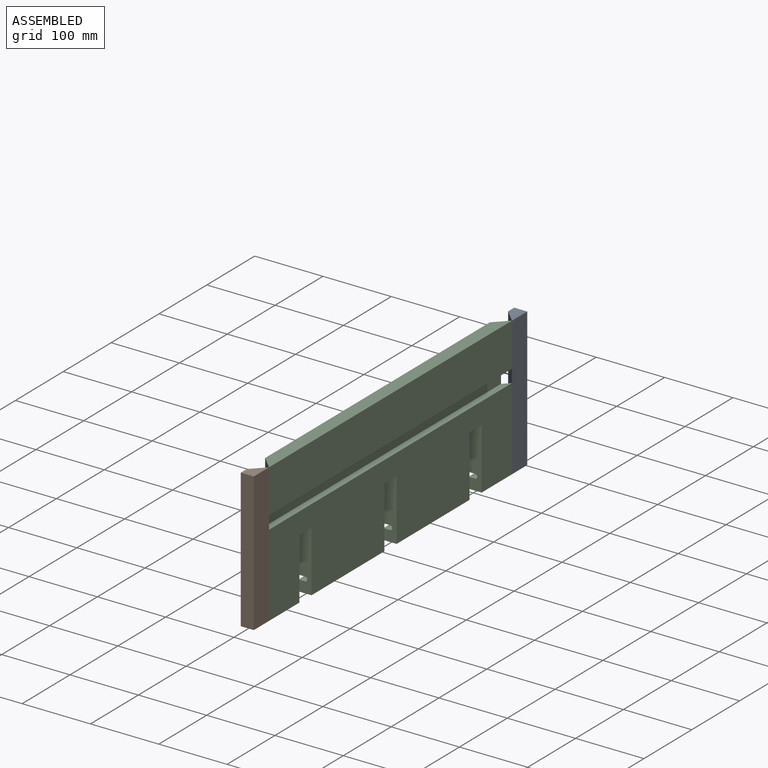
[diagram: assembled view]
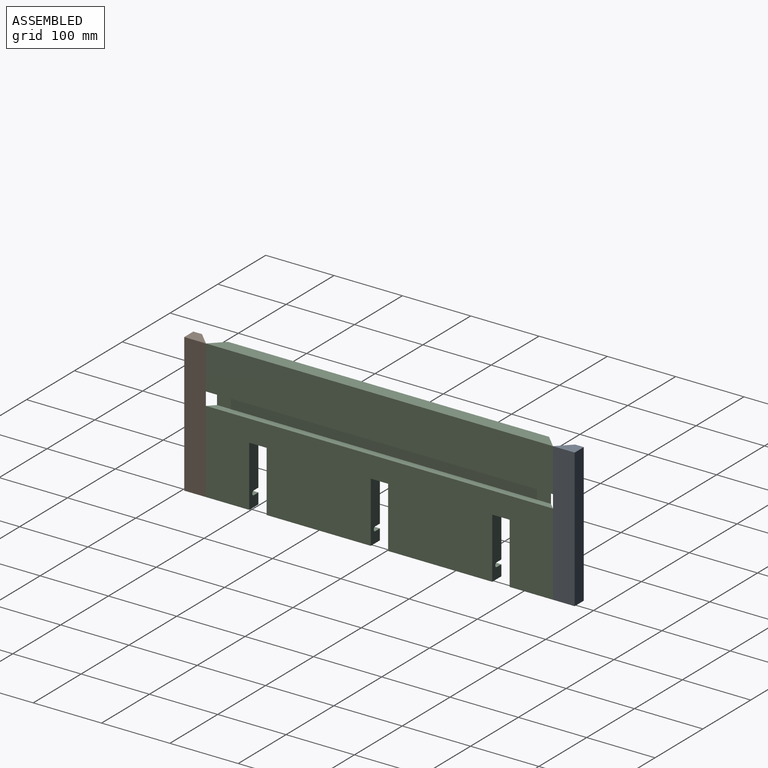
[diagram: assembled view, second angle]
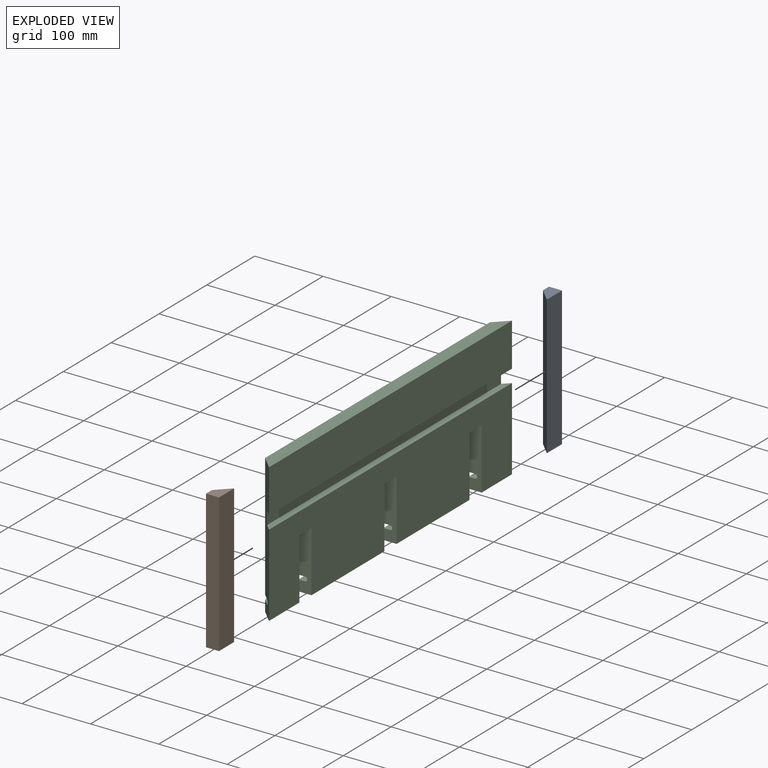
[diagram: exploded view]
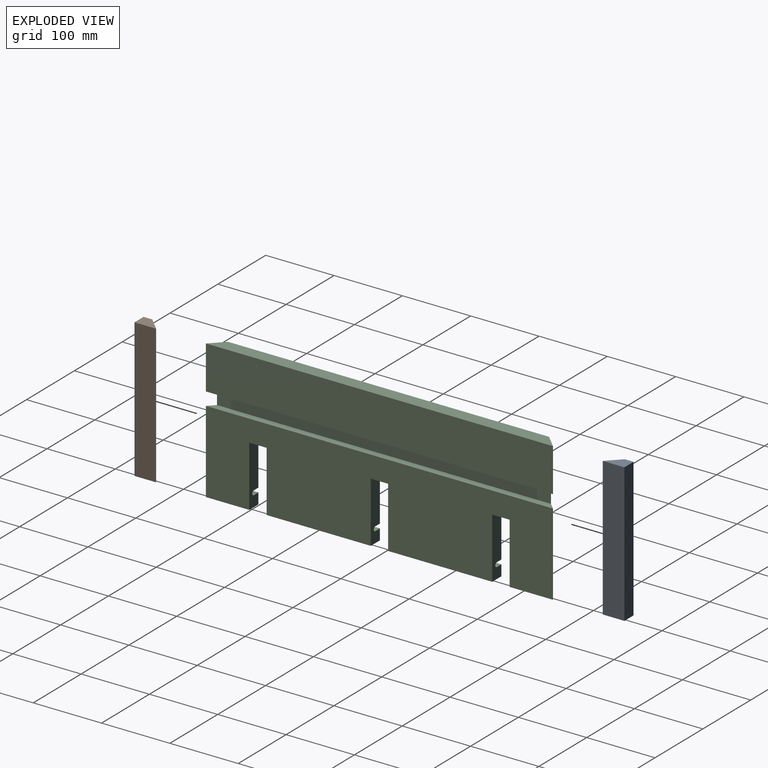
[diagram: exploded view, second angle]
ASSEMBLY  parts=3 mates=2
PART A: 6 faces, bbox 31.8x19.1x203.2 mm
  f0: plane 31.75x19.05mm, normal (0,0,-1), area 423.4mm2, adj f1,f3,f4,f5
  f1: plane 203.2x19.05mm, normal (0.71,-0.71,0), area 5474.4mm2, adj f0,f2,f3,f4
  f2: plane 31.75x19.05mm, normal (0,0,1), area 423.4mm2, adj f1,f3,f4,f5
  f3: plane 203.2x31.75mm, normal (0,1,0), area 6451.6mm2, adj f0,f1,f2,f5
  f4: plane 203.2x12.7mm, normal (0,-1,0), area 2580.6mm2, adj f0,f1,f2,f5
  f5: plane 203.2x19.05mm, normal (-1,0,0), area 3871mm2, adj f0,f2,f3,f4
PART B: 6 faces, bbox 31.8x19.1x203.2 mm
  f0: plane 31.75x19.05mm, normal (0,0,-1), area 423.4mm2, adj f1,f3,f4,f5
  f1: plane 203.2x19.05mm, normal (0.71,0.71,0), area 5474.4mm2, adj f0,f2,f3,f4
  f2: plane 31.75x19.05mm, normal (0,0,1), area 423.4mm2, adj f1,f3,f4,f5
  f3: plane 203.2x31.75mm, normal (0,-1,0), area 6451.6mm2, adj f0,f1,f2,f5
  f4: plane 203.2x12.7mm, normal (0,1,0), area 2580.6mm2, adj f0,f1,f2,f5
  f5: plane 203.2x19.05mm, normal (-1,0,0), area 3871mm2, adj f0,f2,f3,f4
PART C: 38 faces, bbox 19.1x508x203.2 mm
  f0: plane 508x19.05mm, normal (0,0,1), area 9314.5mm2, adj f1,f23,f36,f37
  f1: plane 469.9x180.98mm, normal (-1,0,0), area 79959.5mm2, adj f0,f8,f13,f14,f15,f16,f17,f18
  f2: plane 63.5x19.05mm, normal (0,0,-1), area 1028.2mm2, adj f3,f18,f21,f37
  f3: plane 44.45x15.88mm, normal (-1,0,0), area 705.6mm2, adj f2,f7,f18,f37
  f4: plane 508x9.53mm, normal (0,0,1), area 4748mm2, adj f5,f21,f36,f37
  f5: plane 488.95x19.05mm, normal (1,0,0), area 9314.5mm2, adj f4,f6,f36,f37
  f6: plane 508x9.53mm, normal (0,0,-1), area 4748mm2, adj f5,f23,f36,f37
  f7: plane 53.98x9.53mm, normal (0,0,1), area 468.7mm2, adj f3,f9,f18,f37
  f8: plane 53.98x9.53mm, normal (0,0,-1), area 468.7mm2, adj f1,f9,f18,f37
  f9: cylinder r=3.17mm len=57.16mm, axis (0,1,0), area 558.5mm2, adj f7,f8,f18,f37
  f10: plane 44.45x15.88mm, normal (-1,0,0), area 705.6mm2, adj f15,f22,f35,f36
  f11: plane 152.4x15.88mm, normal (-1,0,0), area 2419.3mm2, adj f14,f16,f19,f31
  f12: plane 152.4x15.88mm, normal (-1,0,0), area 2419.3mm2, adj f13,f17,f20,f28
  f13: plane 88.9x19.05mm, normal (0,-1,0), area 1617.2mm2, adj f1,f12,f20,f21,f24,f27,f28,f29
  f14: plane 88.9x19.05mm, normal (0,1,0), area 1617.2mm2, adj f1,f11,f19,f21,f24,f30,f31,f32
  f15: plane 88.9x19.05mm, normal (0,1,0), area 1617.2mm2, adj f1,f10,f21,f22,f25,f33,f34,f35
  f16: plane 88.9x19.05mm, normal (0,-1,0), area 1617.2mm2, adj f1,f11,f19,f21,f25,f30,f31,f32
  f17: plane 88.9x19.05mm, normal (0,1,0), area 1617.2mm2, adj f1,f12,f20,f21,f26,f27,f28,f29
  f18: plane 88.9x19.05mm, normal (0,-1,0), area 1617.2mm2, adj f1,f2,f3,f7,f8,f9,f21,f26
  f19: plane 152.4x19.05mm, normal (0,0,-1), area 2903.2mm2, adj f11,f14,f16,f21
  f20: plane 152.4x19.05mm, normal (0,0,-1), area 2903.2mm2, adj f12,f13,f17,f21
  f21: plane 508x120.65mm, normal (1,0,0), area 54516mm2, adj f2,f4,f13,f14,f15,f16,f17,f18
  f22: plane 63.5x19.05mm, normal (0,0,-1), area 1028.2mm2, adj f10,f15,f21,f36
  f23: plane 508x63.5mm, normal (1,0,0), area 32258mm2, adj f0,f6,f36,f37
  f24: plane 25.4x19.05mm, normal (0,0,-1), area 483.9mm2, adj f1,f13,f14,f21
  f25: plane 25.4x19.05mm, normal (0,0,-1), area 483.9mm2, adj f1,f15,f16,f21
  f26: plane 25.4x19.05mm, normal (0,0,-1), area 483.9mm2, adj f1,f17,f18,f21
  f27: plane 152.4x9.53mm, normal (0,0,-1), area 1451.6mm2, adj f1,f13,f17,f29
  f28: plane 152.4x9.53mm, normal (0,0,1), area 1451.6mm2, adj f12,f13,f17,f29
  f29: cylinder r=3.17mm len=152.4mm, axis (0,1,0), area 1520.1mm2, adj f13,f17,f27,f28
  f30: plane 152.4x9.53mm, normal (0,0,-1), area 1451.6mm2, adj f1,f14,f16,f32
  f31: plane 152.4x9.53mm, normal (0,0,1), area 1451.6mm2, adj f11,f14,f16,f32
  f32: cylinder r=3.17mm len=152.4mm, axis (0,1,0), area 1520.1mm2, adj f14,f16,f30,f31
  f33: cylinder r=3.17mm len=57.16mm, axis (0,1,0), area 558.5mm2, adj f15,f34,f35,f36
  f34: plane 53.98x9.53mm, normal (0,0,-1), area 468.7mm2, adj f1,f15,f33,f36
  f35: plane 53.98x9.53mm, normal (0,0,1), area 468.7mm2, adj f10,f15,f33,f36
  f36: plane 203.2x19.05mm, normal (-0.71,-0.71,0), area 5109.8mm2, adj f0,f1,f4,f5,f6,f10,f21,f22
  f37: plane 203.2x19.05mm, normal (-0.71,0.71,0), area 5109.8mm2, adj f0,f1,f2,f3,f4,f5,f6,f7
PLACE A rot(axis=(0,0,-1),90deg) t=(-234.95,273.05,0)mm
PLACE B rot(axis=(0,0,1),90deg) t=(-234.95,-273.05,0)mm
PLACE C at identity fixed
MATE fastened A.f2 <-> C.f0  axis (0,0,1) through (19.05,254,101.6)mm
MATE fastened B.f2 <-> C.f0  axis (0,0,1) through (19.05,-254,101.6)mm
